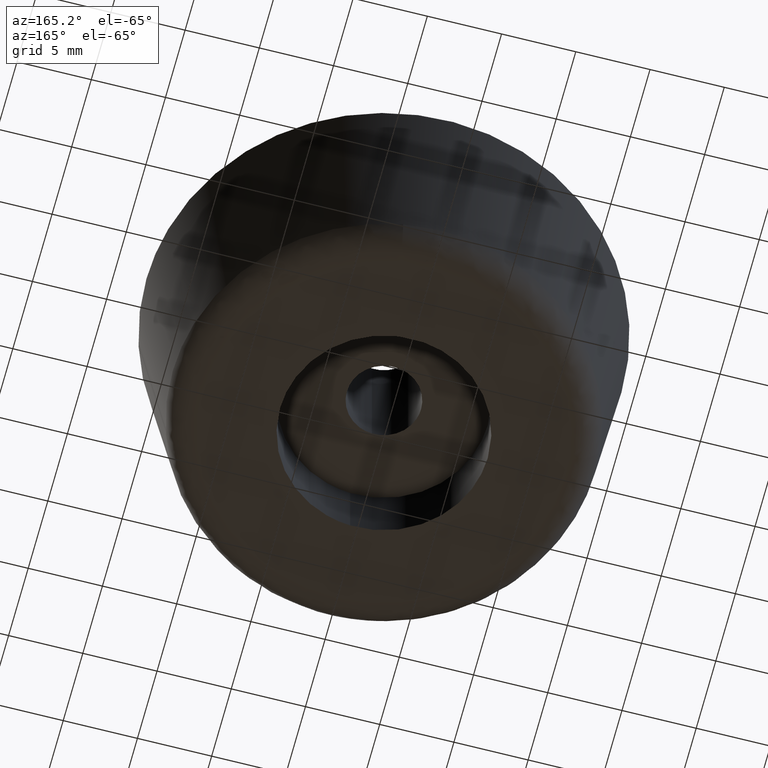
[diagram: clean part render]
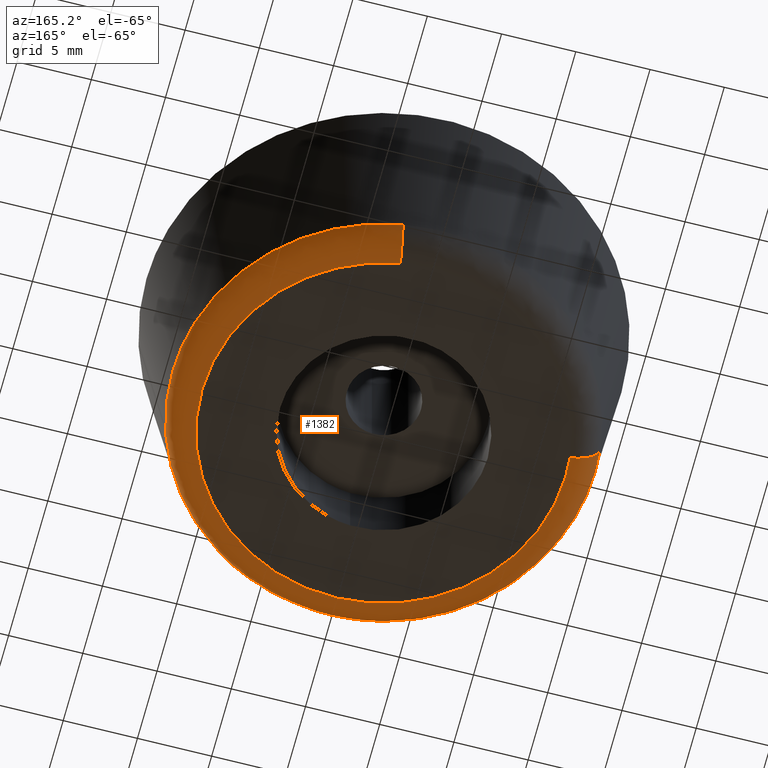
[diagram: same view with one face highlighted and labeled with its STEP entity id]
A machine part, auxiliary view. The second image highlights one B-rep face of the part: STEP entity #1382.
In plain terms, the highlighted face is a freeform B-spline surface patch.
Its self-contained STEP definition (entity closure, byte-faithful):
#507=CARTESIAN_POINT('',(1.116573073906258,-14.187552637133550,1.735668956837331));
#508=VERTEX_POINT('',#507);
#509=CARTESIAN_POINT('',(-13.233295331467041,-5.235769623650086,1.735669910936193));
#510=VERTEX_POINT('',#509);
#511=CARTESIAN_POINT('',(1.116573073906259,-14.187552637133546,1.735668956837331));
#512=CARTESIAN_POINT('',(0.559148343306147,-14.231422472830035,1.735668982207171));
#513=CARTESIAN_POINT('',(-0.000000019058699,-14.231422483654450,1.735669008969359));
#514=CARTESIAN_POINT('',(-9.674154230894176,-14.231422670933972,1.735669471997697));
#515=CARTESIAN_POINT('',(-13.233295331467042,-5.235769623650086,1.735669910936193));
#523=(BOUNDED_CURVE()B_SPLINE_CURVE(2,(#511,#512,#513,#514,#515),.UNSPECIFIED.,.F.,.U.)B_SPLINE_CURVE_WITH_KNOTS((3,2,3),(0.736331439140819,0.750000000000000,0.937532604761302),.UNSPECIFIED.)CURVE()GEOMETRIC_REPRESENTATION_ITEM()RATIONAL_B_SPLINE_CURVE((0.969723645227733,0.983986284853627,1.0,0.780291887035965,0.890203251762617))REPRESENTATION_ITEM(''));
#524=EDGE_CURVE('',#508,#510,#523,.T.);
#584=CARTESIAN_POINT('',(-14.231422999999999,0.0,1.735673000000000));
#585=VERTEX_POINT('',#584);
#586=CARTESIAN_POINT('',(-13.233295331467042,-5.235769623650086,1.735669910936193));
#587=CARTESIAN_POINT('',(-14.231422808505531,-2.713024411246523,1.735671455468096));
#588=CARTESIAN_POINT('',(-14.231422999999999,0.0,1.735673000000000));
#596=(BOUNDED_CURVE()B_SPLINE_CURVE(2,(#586,#587,#588),.UNSPECIFIED.,.F.,.U.)B_SPLINE_CURVE_WITH_KNOTS((3,3),(0.937532604761302,1.0),.UNSPECIFIED.)CURVE()GEOMETRIC_REPRESENTATION_ITEM()RATIONAL_B_SPLINE_CURVE((0.890203251762617,0.926814894150583,1.0))REPRESENTATION_ITEM(''));
#597=EDGE_CURVE('',#510,#585,#596,.T.);
#646=CARTESIAN_POINT('',(14.231422999999999,0.0,1.735673000000000));
#647=VERTEX_POINT('',#646);
#648=CARTESIAN_POINT('',(14.231422999999999,0.0,1.735673000000000));
#649=CARTESIAN_POINT('',(14.231422978851844,-13.155402497452194,1.735670978418665));
#650=CARTESIAN_POINT('',(1.116573073906259,-14.187552637133546,1.735668956837331));
#658=(BOUNDED_CURVE()B_SPLINE_CURVE(2,(#648,#649,#650),.UNSPECIFIED.,.F.,.U.)B_SPLINE_CURVE_WITH_KNOTS((3,3),(0.500000000000000,0.736331439140819),.UNSPECIFIED.)CURVE()GEOMETRIC_REPRESENTATION_ITEM()RATIONAL_B_SPLINE_CURVE((1.0,0.723120496332920,0.969723645227733))REPRESENTATION_ITEM(''));
#659=EDGE_CURVE('',#647,#508,#658,.T.);
#661=CARTESIAN_POINT('',(2.412205854072831,14.025500403396210,1.735673009159751));
#662=VERTEX_POINT('',#661);
#663=CARTESIAN_POINT('',(2.412205854072831,14.025500403396217,1.735673009159751));
#664=CARTESIAN_POINT('',(14.231422999999998,11.992746990569252,1.735673000000001));
#665=CARTESIAN_POINT('',(14.231422999999999,0.0,1.735673000000000));
#673=(BOUNDED_CURVE()B_SPLINE_CURVE(2,(#663,#664,#665),.UNSPECIFIED.,.F.,.U.)B_SPLINE_CURVE_WITH_KNOTS((3,3),(0.279150973644628,0.500000000000000),.UNSPECIFIED.)CURVE()GEOMETRIC_REPRESENTATION_ITEM()RATIONAL_B_SPLINE_CURVE((0.939659646670702,0.741259271195833,1.0))REPRESENTATION_ITEM(''));
#674=EDGE_CURVE('',#662,#647,#673,.T.);
#676=CARTESIAN_POINT('',(-14.140502789280269,1.606106943626014,1.735673009137659));
#677=VERTEX_POINT('',#676);
#693=CARTESIAN_POINT('',(-14.231422999999999,0.0,1.735673000000000));
#694=CARTESIAN_POINT('',(-14.231422999999998,0.805626925825542,1.735673000000000));
#695=CARTESIAN_POINT('',(-14.140502789280273,1.606106943626015,1.735673009137659));
#703=(BOUNDED_CURVE()B_SPLINE_CURVE(2,(#693,#694,#695),.UNSPECIFIED.,.F.,.U.)B_SPLINE_CURVE_WITH_KNOTS((3,3),(0.0,0.019555763443353),.UNSPECIFIED.)CURVE()GEOMETRIC_REPRESENTATION_ITEM()RATIONAL_B_SPLINE_CURVE((1.0,0.977088997994887,0.957762333073472))REPRESENTATION_ITEM(''));
#704=EDGE_CURVE('',#585,#677,#703,.T.);
#1271=CARTESIAN_POINT('',(2.414407923435119,14.038304088767617,1.865133866866641));
#1272=CARTESIAN_POINT('',(15.671528680035951,11.758249660947968,1.865133866866641));
#1273=CARTESIAN_POINT('',(14.153411458741468,-1.607573136445600,1.865133866866640));
#1274=CARTESIAN_POINT('',(12.545838322295868,-15.760984595187065,1.865133866866640));
#1275=CARTESIAN_POINT('',(-1.607573136445600,-14.153411458741468,1.865133866866640));
#1276=CARTESIAN_POINT('',(-15.760984595187065,-12.545838322295872,1.865133866866640));
#1277=CARTESIAN_POINT('',(-14.153411458741468,1.607573136445599,1.865133866866640));
#1278=CARTESIAN_POINT('',(2.391607468932632,13.905733403192404,-0.125149367789794));
#1279=CARTESIAN_POINT('',(15.523534642580506,11.647210663013482,-0.125149367789793));
#1280=CARTESIAN_POINT('',(14.019753757038401,-1.592392024007567,-0.125149367789794));
#1281=CARTESIAN_POINT('',(12.427361733030834,-15.612145781045962,-0.125149367789794));
#1282=CARTESIAN_POINT('',(-1.592392024007566,-14.019753757038401,-0.125149367789794));
#1283=CARTESIAN_POINT('',(-15.612145781045962,-12.427361733030835,-0.125149367789794));
#1284=CARTESIAN_POINT('',(-14.019753757038401,1.592392024007564,-0.125149367789794));
#1285=CARTESIAN_POINT('',(2.054199351338741,11.943911744629165,0.004209604561602));
#1286=CARTESIAN_POINT('',(13.333473493250569,10.004021520950479,0.004209604561602));
#1287=CARTESIAN_POINT('',(12.041846100476613,-1.367737266790359,0.004209604561602));
#1288=CARTESIAN_POINT('',(10.674108833686248,-13.409583367266970,0.004209604561602));
#1289=CARTESIAN_POINT('',(-1.367737266790359,-12.041846100476613,0.004209604561602));
#1290=CARTESIAN_POINT('',(-13.409583367266967,-10.674108833686253,0.004209604561602));
#1291=CARTESIAN_POINT('',(-12.041846100476613,1.367737266790357,0.004209604561602));
#1299=(BOUNDED_SURFACE()B_SPLINE_SURFACE(2,2,((#1271,#1278,#1285),(#1272,#1279,#1286),(#1273,#1280,#1287),(#1274,#1281,#1288),(#1275,#1282,#1289),(#1276,#1283,#1290),(#1277,#1284,#1291)),.UNSPECIFIED.,.F.,.F.,.U.)B_SPLINE_SURFACE_WITH_KNOTS((3,2,2,3),(3,3),(0.0,22.656882107792221,46.257800970075792,69.858719832359341),(0.0,3.307636173747156),.UNSPECIFIED.)GEOMETRIC_REPRESENTATION_ITEM()RATIONAL_B_SPLINE_SURFACE(((0.894527294351433,0.634224955457249,0.897013682214826),(0.657803109108590,0.466386157480547,0.659631509066107),(0.915112006111680,0.648819633542179,0.917655610314715),(0.647081905066794,0.458784762644646,0.648880504847415),(0.915112006111680,0.648819633542179,0.917655610314715),(0.647081905066794,0.458784762644646,0.648880504847415),(0.915112006111680,0.648819633542179,0.917655610314715)))REPRESENTATION_ITEM('')SURFACE());
#1300=CARTESIAN_POINT('',(2.076182406279386,12.071729751755260,7.454664E-015));
#1301=VERTEX_POINT('',#1300);
#1302=CARTESIAN_POINT('',(12.248967000000000,0.0,0.0));
#1303=VERTEX_POINT('',#1302);
#1304=CARTESIAN_POINT('',(2.076182406279386,12.071729751755258,7.454664E-015));
#1305=CARTESIAN_POINT('',(12.248967000000000,10.322141512160714,1.421085E-014));
#1306=CARTESIAN_POINT('',(12.248967000000000,0.0,1.421085E-014));
#1314=(BOUNDED_CURVE()B_SPLINE_CURVE(2,(#1304,#1305,#1306),.UNSPECIFIED.,.F.,.U.)B_SPLINE_CURVE_WITH_KNOTS((3,3),(0.279150973646203,0.500000000000000),.UNSPECIFIED.)CURVE()GEOMETRIC_REPRESENTATION_ITEM()RATIONAL_B_SPLINE_CURVE((0.939659646667872,0.741259271197678,1.0))REPRESENTATION_ITEM(''));
#1315=EDGE_CURVE('',#1301,#1303,#1314,.T.);
#1316=ORIENTED_EDGE('',*,*,#1315,.F.);
#1317=CARTESIAN_POINT('',(2.412205854072832,14.025500403396208,1.735673009159750));
#1318=CARTESIAN_POINT('',(2.372980032117370,13.797426260944924,1.177093E-009));
#1319=CARTESIAN_POINT('',(2.076182406279385,12.071729751755253,7.454664E-015));
#1327=(BOUNDED_CURVE()B_SPLINE_CURVE(2,(#1317,#1318,#1319),.UNSPECIFIED.,.F.,.U.)B_SPLINE_CURVE_WITH_KNOTS((3,3),(-1.709476799894566,-0.283065973095551),.UNSPECIFIED.)CURVE()GEOMETRIC_REPRESENTATION_ITEM()RATIONAL_B_SPLINE_CURVE((0.871963753607451,0.656901442502971,0.874224248207718))REPRESENTATION_ITEM(''));
#1328=EDGE_CURVE('',#662,#1301,#1327,.T.);
#1329=ORIENTED_EDGE('',*,*,#1328,.F.);
#1330=ORIENTED_EDGE('',*,*,#674,.T.);
#1331=ORIENTED_EDGE('',*,*,#659,.T.);
#1332=ORIENTED_EDGE('',*,*,#524,.T.);
#1333=ORIENTED_EDGE('',*,*,#597,.T.);
#1334=ORIENTED_EDGE('',*,*,#704,.T.);
#1335=CARTESIAN_POINT('',(-12.170712154045679,1.382374134200424,7.477843E-015));
#1336=VERTEX_POINT('',#1335);
#1337=CARTESIAN_POINT('',(-14.140502789280271,1.606106943626015,1.735673009137659));
#1338=CARTESIAN_POINT('',(-13.910558548058230,1.579989411033531,1.175985E-009));
#1339=CARTESIAN_POINT('',(-12.170712154045678,1.382374134200424,7.477843E-015));
#1347=(BOUNDED_CURVE()B_SPLINE_CURVE(2,(#1337,#1338,#1339),.UNSPECIFIED.,.F.,.U.)B_SPLINE_CURVE_WITH_KNOTS((3,3),(-1.709476799870467,-0.283065973094864),.UNSPECIFIED.)CURVE()GEOMETRIC_REPRESENTATION_ITEM()RATIONAL_B_SPLINE_CURVE((0.892029236952771,0.672017948100358,0.894341749682521))REPRESENTATION_ITEM(''));
#1348=EDGE_CURVE('',#677,#1336,#1347,.T.);
#1349=ORIENTED_EDGE('',*,*,#1348,.T.);
#1350=CARTESIAN_POINT('',(-12.248967000000000,0.0,1.421085E-014));
#1351=VERTEX_POINT('',#1350);
#1352=CARTESIAN_POINT('',(-12.248967000000000,0.0,1.421085E-014));
#1353=CARTESIAN_POINT('',(-12.248967000000000,0.693402032232155,1.421085E-014));
#1354=CARTESIAN_POINT('',(-12.170712154045683,1.382374134200425,7.477843E-015));
#1362=(BOUNDED_CURVE()B_SPLINE_CURVE(2,(#1352,#1353,#1354),.UNSPECIFIED.,.F.,.U.)B_SPLINE_CURVE_WITH_KNOTS((3,3),(0.0,0.019555763445303),.UNSPECIFIED.)CURVE()GEOMETRIC_REPRESENTATION_ITEM()RATIONAL_B_SPLINE_CURVE((1.0,0.977088997992603,0.957762333069618))REPRESENTATION_ITEM(''));
#1363=EDGE_CURVE('',#1351,#1336,#1362,.T.);
#1364=ORIENTED_EDGE('',*,*,#1363,.F.);
#1365=CARTESIAN_POINT('',(12.248967000000000,0.0,1.421085E-014));
#1366=CARTESIAN_POINT('',(12.248967000000000,-12.248967000000000,1.421085E-014));
#1367=CARTESIAN_POINT('',(0.0,-12.248967000000000,1.421085E-014));
#1368=CARTESIAN_POINT('',(-12.248967000000000,-12.248967000000000,1.421085E-014));
#1369=CARTESIAN_POINT('',(-12.248967000000000,0.0,1.421085E-014));
#1377=(BOUNDED_CURVE()B_SPLINE_CURVE(2,(#1365,#1366,#1367,#1368,#1369),.UNSPECIFIED.,.F.,.U.)B_SPLINE_CURVE_WITH_KNOTS((3,2,3),(0.500000000000000,0.750000000000000,1.0),.UNSPECIFIED.)CURVE()GEOMETRIC_REPRESENTATION_ITEM()RATIONAL_B_SPLINE_CURVE((1.0,0.707106781186548,1.0,0.707106781186548,1.0))REPRESENTATION_ITEM(''));
#1378=EDGE_CURVE('',#1303,#1351,#1377,.T.);
#1379=ORIENTED_EDGE('',*,*,#1378,.F.);
#1380=EDGE_LOOP('',(#1316,#1329,#1330,#1331,#1332,#1333,#1334,#1349,#1364,#1379));
#1381=FACE_OUTER_BOUND('',#1380,.T.);
#1382=ADVANCED_FACE('',(#1381),#1299,.T.);